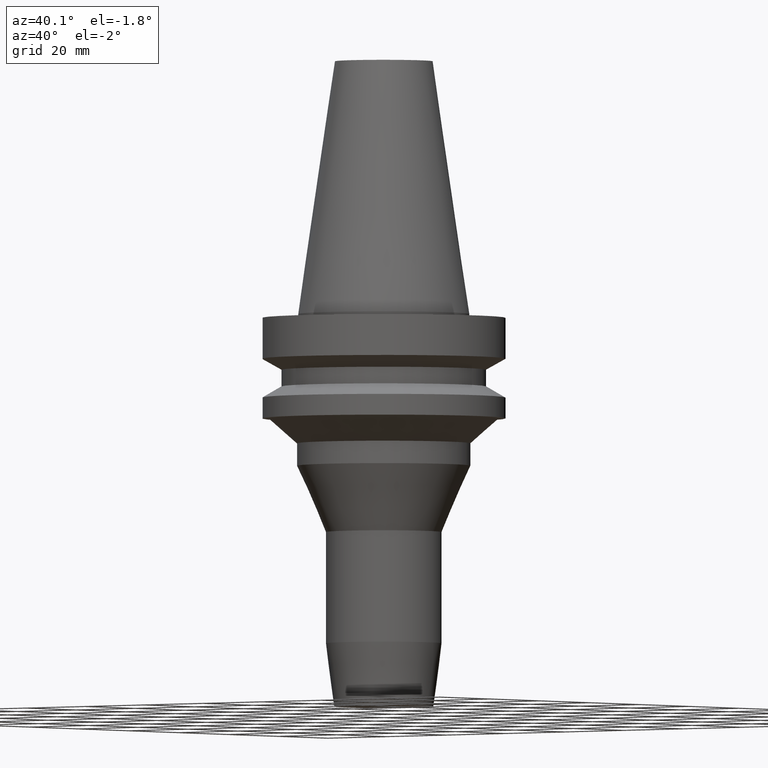
[diagram: clean part render]
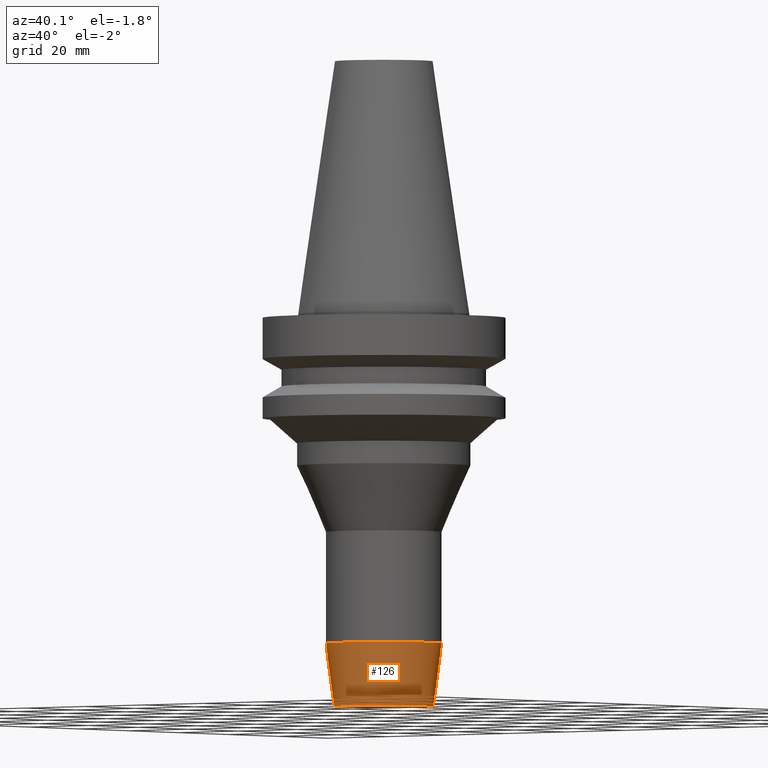
[diagram: same view with one face highlighted and labeled with its STEP entity id]
A machine part, auxiliary view. The second image highlights one B-rep face of the part: STEP entity #126.
In plain terms, the highlighted conical surface has half-angle 7.5 deg.
Its self-contained STEP definition (entity closure, byte-faithful):
#95=EDGE_CURVE('Unnamed[1]',#216,#216,#217,.T.);
#115=EDGE_CURVE('Unnamed[1]',#247,#247,#248,.T.);
#126=ADVANCED_FACE('Unnamed[1]',(#261,#262),#263,.T.);
#216=VERTEX_POINT('',#364);
#217=CIRCLE('',#365,12.8453653554241);
#247=VERTEX_POINT('',#403);
#248=CIRCLE('',#404,14.9999999999988);
#261=FACE_BOUND('',#420,.T.);
#262=FACE_BOUND('',#421,.T.);
#263=CONICAL_SURFACE('',#422,13.9226826777114,0.130899693901765);
#364=CARTESIAN_POINT('',(6.22120573966481E-015,12.8453653554241,-101.599999999939));
#365=AXIS2_PLACEMENT_3D('',#514,#515,#516);
#403=CARTESIAN_POINT('',(5.21907267378275E-015,14.9999999999988,-85.2339250372674));
#404=AXIS2_PLACEMENT_3D('',#549,#550,#551);
#420=EDGE_LOOP('',(#562));
#421=EDGE_LOOP('',(#563));
#422=AXIS2_PLACEMENT_3D('',#564,#565,#566);
#514=CARTESIAN_POINT('',(6.22120573966481E-015,7.31082707937584E-014,-101.599999999939));
#515=DIRECTION('',(6.12323399573677E-017,-2.41671098803842E-017,-1.0));
#516=DIRECTION('',(-3.34734404279467E-033,1.0,-2.41671098803842E-017));
#549=CARTESIAN_POINT('',(5.21907267378275E-015,7.35037915256919E-014,-85.2339250372674));
#550=DIRECTION('',(6.12323399573676E-017,-2.41671098804372E-017,-1.0));
#551=DIRECTION('',(-3.34734404279271E-033,1.0,-2.41671098804372E-017));
#562=ORIENTED_EDGE('',*,*,#95,.F.);
#563=ORIENTED_EDGE('',*,*,#115,.T.);
#564=CARTESIAN_POINT('',(5.72013920672378E-015,7.33060311597251E-014,-93.4169625186031));
#565=DIRECTION('',(-6.12323399573677E-017,2.41671098803547E-017,1.0));
#566=DIRECTION('',(-3.34734404278717E-033,1.0,-2.41671098803547E-017));